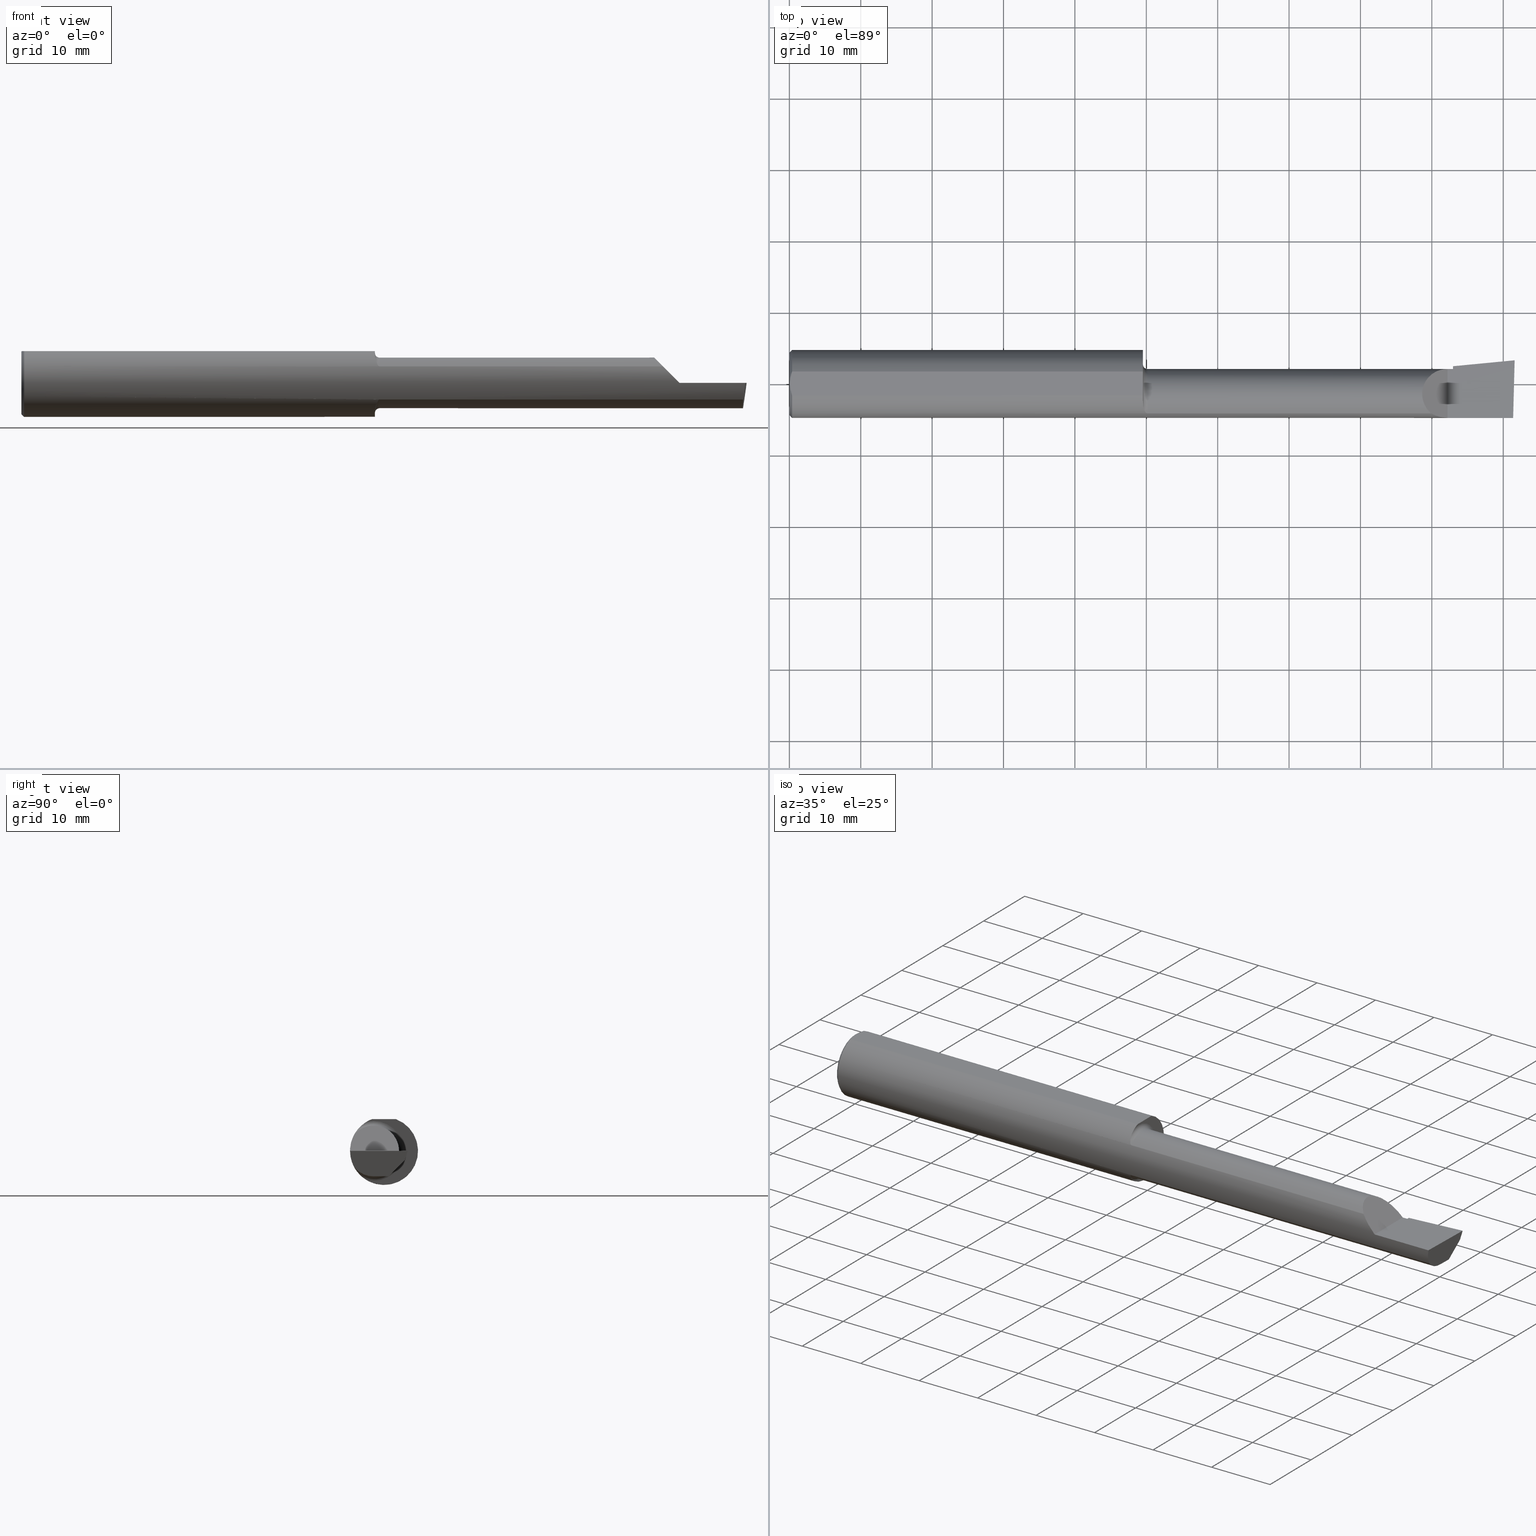
[diagram: canonical four-view strip — front | top / right | iso, engineering-drawing reading convention]
A machine part, canonical four-view strip (front | top / right | iso — engineering-drawing reading convention). The complete STEP part file that produces these views, byte-faithful:
ISO-10303-21;
HEADER;
FILE_DESCRIPTION (( 'STEP AP203' ),
    '1' );
FILE_NAME ('217498-B3202000.STEP',
    '2024-04-26T19:26:52',
    ( '' ),
    ( '' ),
    'SwSTEP 2.0',
    'SolidWorks 2022',
    '' );
FILE_SCHEMA (( 'CONFIG_CONTROL_DESIGN' ));
ENDSEC;

DATA;
#1 = PERSON_AND_ORGANIZATION ( #171, #561 ) ;
#2 = ORIENTED_EDGE ( 'NONE', *, *, #525, .T. ) ;
#3 = PLANE ( 'NONE',  #602 ) ;
#4 = AXIS2_PLACEMENT_3D ( 'NONE', #524, #586, #435 ) ;
#5 = EDGE_CURVE ( 'NONE', #362, #336, #89, .T. ) ;
#6 = CC_DESIGN_APPROVAL ( #404, ( #19 ) ) ;
#7 = ORIENTED_EDGE ( 'NONE', *, *, #544, .F. ) ;
#8 = CARTESIAN_POINT ( 'NONE',  ( 3.659999999999999698, -0.05739999999999999963, -0.1400500000000000633 ) ) ;
#9 = ORIENTED_EDGE ( 'NONE', *, *, #437, .F. ) ;
#10 = DIRECTION ( 'NONE',  ( -4.268512490100411279E-18, 1.000000000000000000, 0.000000000000000000 ) ) ;
#11 = CARTESIAN_POINT ( 'NONE',  ( 0.01499999999999997863, -0.06597272163553657975, 0.1753499999999999781 ) ) ;
#12 = DATE_TIME_ROLE ( 'classification_date' ) ;
#13 = ORIENTED_EDGE ( 'NONE', *, *, #202, .F. ) ;
#14 = LINE ( 'NONE', #566, #332 ) ;
#15 = ADVANCED_FACE ( 'NONE', ( #142 ), #548, .F. ) ;
#16 = CARTESIAN_POINT ( 'NONE',  ( 1.565719721143680372E-32, -0.1873499999999999610, 1.790477306702064235E-16 ) ) ;
#17 = ORIENTED_EDGE ( 'NONE', *, *, #295, .F. ) ;
#18 = CIRCLE ( 'NONE', #256, 0.1873499999999999888 ) ;
#19 = PRODUCT_DEFINITION_FORMATION_WITH_SPECIFIED_SOURCE ( 'ANY', '', #254, .NOT_KNOWN. ) ;
#20 = CARTESIAN_POINT ( 'NONE',  ( 3.654666039249973686, 0.01321247140458286194, -0.1209457786867198376 ) ) ;
#21 = VERTEX_POINT ( 'NONE', #235 ) ;
#22 = CARTESIAN_POINT ( 'NONE',  ( 0.01499999999999999424, 0.000000000000000000, 0.000000000000000000 ) ) ;
#23 = EDGE_CURVE ( 'NONE', #450, #371, #580, .T. ) ;
#24 = ORIENTED_EDGE ( 'NONE', *, *, #160, .T. ) ;
#25 = CARTESIAN_POINT ( 'NONE',  ( 1.967975941902152970, -0.1612443294219081946, -0.09540922431498190248 ) ) ;
#26 = CARTESIAN_POINT ( 'NONE',  ( 0.008227791779583789808, -0.04447712204611815878, 0.1753499999999999781 ) ) ;
#27 = B_SPLINE_CURVE_WITH_KNOTS ( 'NONE', 3,
 ( #98, #536, #37, #139, #340, #94, #381, #473, #633, #250, #293, #29, #148, #576 ),
 .UNSPECIFIED., .F., .F.,
 ( 4, 2, 2, 2, 2, 2, 4 ),
 ( 0.0002471551878304244871, 0.0008987327522055639636, 0.001550310316580703549, 0.002201887880955843025, 0.002527676663143411679, 0.002690571054237196440, 0.002853465445330980767 ),
 .UNSPECIFIED. ) ;
#28 = EDGE_CURVE ( 'NONE', #187, #599, #228, .T. ) ;
#29 = CARTESIAN_POINT ( 'NONE',  ( 1.970903862568969656, -0.1628809688430622182, 0.09258733509388469840 ) ) ;
#30 = AXIS2_PLACEMENT_3D ( 'NONE', #133, #126, #273 ) ;
#31 = CARTESIAN_POINT ( 'NONE',  ( 0.01499999999999999424, 0.000000000000000000, -0.1873499999999999888 ) ) ;
#32 = CARTESIAN_POINT ( 'NONE',  ( 3.656639924654160101, 0.06539171466162853330, -0.06735725908305577325 ) ) ;
#33 = LINE ( 'NONE', #88, #278 ) ;
#34 = DIRECTION ( 'NONE',  ( -1.000000000000000000, -4.268512490100411279E-18, -0.000000000000000000 ) ) ;
#35 = CARTESIAN_POINT ( 'NONE',  ( 3.981080296960509024, -0.1635956445993029806, -0.09130436773856190347 ) ) ;
#36 = EDGE_CURVE ( 'NONE', #453, #77, #274, .T. ) ;
#37 = CARTESIAN_POINT ( 'NONE',  ( 1.950383728133729955, -0.1114837668894153588, 0.1508119329971095157 ) ) ;
#38 = CARTESIAN_POINT ( 'NONE',  ( 3.984117089522338340, -0.1792580844883770730, -0.06324101202936152633 ) ) ;
#39 = APPLICATION_CONTEXT ( 'configuration controlled 3d designs of mechanical parts and assemblies' ) ;
#40 = AXIS2_PLACEMENT_3D ( 'NONE', #117, #167, #50 ) ;
#41 = ORIENTED_EDGE ( 'NONE', *, *, #538, .F. ) ;
#42 = CARTESIAN_POINT ( 'NONE',  ( 1.950000000000000178, -0.05740000000000000657, 0.000000000000000000 ) ) ;
#43 = CARTESIAN_POINT ( 'NONE',  ( 3.629999999999999893, 0.08264999999999990410, -1.383850883036508279E-16 ) ) ;
#44 = ADVANCED_FACE ( 'NONE', ( #567 ), #232, .T. ) ;
#45 = PERSON_AND_ORGANIZATION_ROLE ( 'classification_officer' ) ;
#46 = PLANE ( 'NONE',  #40 ) ;
#47 = PRODUCT_DEFINITION_SHAPE ( 'NONE', 'NONE',  #597 ) ;
#48 = CARTESIAN_POINT ( 'NONE',  ( 3.654666039249973686, 0.01321247140458286194, -0.1209457786867198376 ) ) ;
#49 = VERTEX_POINT ( 'NONE', #414 ) ;
#50 = DIRECTION ( 'NONE',  ( -0.7071067811865507924, 0.000000000000000000, 0.7071067811865443531 ) ) ;
#51 = AXIS2_PLACEMENT_3D ( 'NONE', #220, #615, #408 ) ;
#52 =( CONVERSION_BASED_UNIT ( 'INCH', #594 ) LENGTH_UNIT ( ) NAMED_UNIT ( #532 ) );
#53 = EDGE_LOOP ( 'NONE', ( #57, #158 ) ) ;
#54 = CARTESIAN_POINT ( 'NONE',  ( 3.999999999999979572, 0.1306500000000239969, 8.433726977940392991E-14 ) ) ;
#55 = EDGE_CURVE ( 'NONE', #181, #264, #417, .T. ) ;
#56 = APPROVAL_ROLE ( '' ) ;
#57 = ORIENTED_EDGE ( 'NONE', *, *, #489, .T. ) ;
#58 = LINE ( 'NONE', #263, #237 ) ;
#59 =( BOUNDED_CURVE ( )  B_SPLINE_CURVE ( 3, ( #35, #391, #243, #591 ),
 .UNSPECIFIED., .F., .F. ) 
 B_SPLINE_CURVE_WITH_KNOTS ( ( 4, 4 ),
 ( 5.632580117768156036, 6.493234751459283416 ),
 .UNSPECIFIED. ) 
 CURVE ( )  GEOMETRIC_REPRESENTATION_ITEM ( )  RATIONAL_B_SPLINE_CURVE ( ( 1.000000000000000000, 0.9392195014330944058, 0.9392195014330944058, 1.000000000000000000 ) ) 
 REPRESENTATION_ITEM ( '' )  );
#60 = CARTESIAN_POINT ( 'NONE',  ( 3.650743536083990382, 0.05394922433140207640, -0.08888335082963770561 ) ) ;
#61 = ORIENTED_EDGE ( 'NONE', *, *, #465, .T. ) ;
#62 = DIRECTION ( 'NONE',  ( 0.000000000000000000, 1.000000000000000000, 0.000000000000000000 ) ) ;
#63 =( BOUNDED_CURVE ( )  B_SPLINE_CURVE ( 3, ( #99, #38, #632, #203 ),
 .UNSPECIFIED., .F., .T. ) 
 B_SPLINE_CURVE_WITH_KNOTS ( ( 4, 4 ),
 ( 0.8516985021657640376, 1.360746882515199152 ),
 .UNSPECIFIED. ) 
 CURVE ( )  GEOMETRIC_REPRESENTATION_ITEM ( )  RATIONAL_B_SPLINE_CURVE ( ( 1.000000000000000000, 0.9785221379938656705, 0.9785221379938656705, 1.000000000000000000 ) ) 
 REPRESENTATION_ITEM ( '' )  );
#64 = VECTOR ( 'NONE', #253, 39.37007874015748143 ) ;
#65 = CALENDAR_DATE ( 2024, 26, 4 ) ;
#66 = VECTOR ( 'NONE', #585, 39.37007874015748854 ) ;
#67 = ORIENTED_EDGE ( 'NONE', *, *, #535, .F. ) ;
#68 = DIRECTION ( 'NONE',  ( 0.000000000000000000, 1.000000000000000000, -1.438723400918613551E-16 ) ) ;
#69 = DIRECTION ( 'NONE',  ( 0.000000000000000000, 0.000000000000000000, 1.000000000000000000 ) ) ;
#70 = ORIENTED_EDGE ( 'NONE', *, *, #202, .T. ) ;
#71 = CARTESIAN_POINT ( 'NONE',  ( 4.000000000000000000, -0.05739999999999999963, -0.1400500000000000633 ) ) ;
#72 = APPROVAL ( #447, 'UNSPECIFIED' ) ;
#73 = EDGE_LOOP ( 'NONE', ( #305, #123, #552, #67 ) ) ;
#74 = UNCERTAINTY_MEASURE_WITH_UNIT (LENGTH_MEASURE( 1.000000000000000082E-05 ), #52, 'distance_accuracy_value', 'NONE');
#75 = CARTESIAN_POINT ( 'NONE',  ( 3.658254417281640247, 0.01401537333401175513, -0.1204743278970655529 ) ) ;
#76 = CARTESIAN_POINT ( 'NONE',  ( 3.659999999999999698, 0.1149890494305081945, -0.01656765604781319789 ) ) ;
#77 = VERTEX_POINT ( 'NONE', #456 ) ;
#78 = AXIS2_PLACEMENT_3D ( 'NONE', #553, #492, #156 ) ;
#79 = CC_DESIGN_APPROVAL ( #298, ( #385 ) ) ;
#80 = CARTESIAN_POINT ( 'NONE',  ( 3.421229036482944075, -0.06260079402492399470, 0.2087709635170538480 ) ) ;
#81 = CARTESIAN_POINT ( 'NONE',  ( 0.003000000000000218638, 2.334609556160449697E-17, 0.1753499999999999781 ) ) ;
#82 = EDGE_CURVE ( 'NONE', #187, #125, #215, .T. ) ;
#83 = ORIENTED_EDGE ( 'NONE', *, *, #28, .F. ) ;
#84 = DIRECTION ( 'NONE',  ( 0.06658005426110566449, -0.6914603011188223958, -0.7193398003386547446 ) ) ;
#85 = DIRECTION ( 'NONE',  ( 1.000000000000000000, 0.000000000000000000, 0.000000000000000000 ) ) ;
#86 = VERTEX_POINT ( 'NONE', #180 ) ;
#87 = CARTESIAN_POINT ( 'NONE',  ( 2.817500000000000338, -0.1635956445993029806, -0.09130436773856190347 ) ) ;
#88 = CARTESIAN_POINT ( 'NONE',  ( 0.000000000000000000, -0.06597272163553657975, 0.1753499999999999781 ) ) ;
#89 = LINE ( 'NONE', #630, #515 ) ;
#90 = CARTESIAN_POINT ( 'NONE',  ( 1.956145841430604770, -0.1426194794824340584, -0.1217813759115466132 ) ) ;
#91 = AXIS2_PLACEMENT_3D ( 'NONE', #638, #429, #634 ) ;
#92 = VECTOR ( 'NONE', #484, 39.37007874015748854 ) ;
#93 = CARTESIAN_POINT ( 'NONE',  ( 4.000000000000000000, -0.05739999999999999963, -0.1400500000000000633 ) ) ;
#94 = CARTESIAN_POINT ( 'NONE',  ( 1.956142321956750418, -0.1426151417460931881, 0.1217894822571231050 ) ) ;
#95 = ADVANCED_FACE ( 'NONE', ( #464 ), #183, .T. ) ;
#96 = LINE ( 'NONE', #242, #92 ) ;
#97 = CARTESIAN_POINT ( 'NONE',  ( 3.629999999999999893, -0.1873499999999999888, -1.383850883036508279E-16 ) ) ;
#98 = CARTESIAN_POINT ( 'NONE',  ( 1.950000000000000178, -0.09715400696864148755, 0.1601908905959922580 ) ) ;
#99 = CARTESIAN_POINT ( 'NONE',  ( 3.981080296960509024, -0.1635956445993029806, -0.09130436773856190347 ) ) ;
#100 = VECTOR ( 'NONE', #531, 39.37007874015748143 ) ;
#101 = ADVANCED_FACE ( 'NONE', ( #373 ), #627, .T. ) ;
#102 = MANIFOLD_SOLID_BREP ( 'Extrude7', #111 ) ;
#103 = PERSON_AND_ORGANIZATION ( #171, #561 ) ;
#104 = LINE ( 'NONE', #648, #592 ) ;
#105 = MECHANICAL_CONTEXT ( 'NONE', #39, 'mechanical' ) ;
#106 = EDGE_LOOP ( 'NONE', ( #166, #70, #221, #114, #606, #319 ) ) ;
#107 = DIRECTION ( 'NONE',  ( -4.268512490100411279E-18, 1.000000000000000000, 3.732688574539098315E-34 ) ) ;
#108 = APPROVAL_DATE_TIME ( #545, #72 ) ;
#109 = ORIENTED_EDGE ( 'NONE', *, *, #284, .T. ) ;
#110 = FACE_OUTER_BOUND ( 'NONE', #427, .T. ) ;
#111 = CLOSED_SHELL ( 'NONE', ( #244, #419, #95, #433, #363, #335, #426, #347, #15, #397, #101, #44, #454, #516, #327, #141, #316 ) ) ;
#112 = LOCAL_TIME ( 12, 26, 52.00000000000000000, #436 ) ;
#113 = APPROVAL_ROLE ( '' ) ;
#114 = ORIENTED_EDGE ( 'NONE', *, *, #376, .F. ) ;
#115 = DIRECTION ( 'NONE',  ( -1.000000000000000000, 0.000000000000000000, 8.744705756855574331E-17 ) ) ;
#116 = EDGE_LOOP ( 'NONE', ( #503, #162, #7, #61, #558, #472, #507, #314, #308, #573, #444, #17 ) ) ;
#117 = CARTESIAN_POINT ( 'NONE',  ( 3.629999999999999893, -0.2500000000000000555, -1.383850883036508279E-16 ) ) ;
#118 = APPROVAL_DATE_TIME ( #168, #298 ) ;
#119 = VERTEX_POINT ( 'NONE', #247 ) ;
#120 = DIRECTION ( 'NONE',  ( -1.000000000000000000, -4.268512490100411279E-18, -0.000000000000000000 ) ) ;
#121 = EDGE_CURVE ( 'NONE', #505, #371, #577, .T. ) ;
#122 = CIRCLE ( 'NONE', #517, 0.1723499999999996424 ) ;
#123 = ORIENTED_EDGE ( 'NONE', *, *, #129, .F. ) ;
#124 = DIRECTION ( 'NONE',  ( -1.000000000000000000, -0.000000000000000000, -0.000000000000000000 ) ) ;
#125 = VERTEX_POINT ( 'NONE', #31 ) ;
#126 = DIRECTION ( 'NONE',  ( -1.000000000000000000, -4.268512490100411279E-18, 0.000000000000000000 ) ) ;
#127 = VERTEX_POINT ( 'NONE', #43 ) ;
#128 = CARTESIAN_POINT ( 'NONE',  ( 3.659999999999999698, 0.01441505128072236540, -0.1202356058309986681 ) ) ;
#129 = EDGE_CURVE ( 'NONE', #230, #181, #411, .T. ) ;
#130 = DIRECTION ( 'NONE',  ( -1.000000000000000000, -4.268512490100411279E-18, -0.000000000000000000 ) ) ;
#131 = ORIENTED_EDGE ( 'NONE', *, *, #121, .F. ) ;
#132 = AXIS2_PLACEMENT_3D ( 'NONE', #345, #239, #485 ) ;
#133 = CARTESIAN_POINT ( 'NONE',  ( 3.659999999999999698, 0.09791172361283663472, 0.000000000000000000 ) ) ;
#134 = EDGE_CURVE ( 'NONE', #339, #450, #33, .T. ) ;
#135 = DIRECTION ( 'NONE',  ( -1.000000000000000000, -4.268512490100411279E-18, -0.000000000000000000 ) ) ;
#136 = ORIENTED_EDGE ( 'NONE', *, *, #267, .T. ) ;
#137 =( BOUNDED_CURVE ( )  B_SPLINE_CURVE ( 3, ( #514, #80, #282, #175 ),
 .UNSPECIFIED., .F., .T. ) 
 B_SPLINE_CURVE_WITH_KNOTS ( ( 4, 4 ),
 ( 5.422530673488460629, 7.853981633974483678 ),
 .UNSPECIFIED. ) 
 CURVE ( )  GEOMETRIC_REPRESENTATION_ITEM ( )  RATIONAL_B_SPLINE_CURVE ( ( 1.000000000000000000, 0.5651045289226865886, 0.5651045289226865886, 1.000000000000000000 ) ) 
 REPRESENTATION_ITEM ( '' )  );
#138 = CARTESIAN_POINT ( 'NONE',  ( 1.951903396790308109, -0.1248165254919064160, -0.1399798634953944299 ) ) ;
#139 = CARTESIAN_POINT ( 'NONE',  ( 1.951891754936545098, -0.1247344934163569508, 0.1400506178720500317 ) ) ;
#140 = DIRECTION ( 'NONE',  ( 0.000000000000000000, 0.000000000000000000, 1.000000000000000000 ) ) ;
#141 = ADVANCED_FACE ( 'NONE', ( #241 ), #425, .T. ) ;
#142 = FACE_OUTER_BOUND ( 'NONE', #333, .T. ) ;
#143 = DIRECTION ( 'NONE',  ( 1.000000000000000000, 4.268512490100411279E-18, 0.000000000000000000 ) ) ;
#144 = VECTOR ( 'NONE', #468, 39.37007874015748143 ) ;
#145 = DIRECTION ( 'NONE',  ( -1.000000000000000000, -4.268512490100411279E-18, -0.000000000000000000 ) ) ;
#146 = DIRECTION ( 'NONE',  ( 0.000000000000000000, -0.2936076258024062913, -0.9559260233253795702 ) ) ;
#147 = CARTESIAN_POINT ( 'NONE',  ( 3.977889026591898691, -0.05682100378451883371, -0.1400500000000000633 ) ) ;
#148 = CARTESIAN_POINT ( 'NONE',  ( 1.972800914500665304, -0.1635956445997551467, 0.09130436773775216230 ) ) ;
#149 = CARTESIAN_POINT ( 'NONE',  ( 0.000000000000000000, 0.000000000000000000, 0.000000000000000000 ) ) ;
#150 = ORIENTED_EDGE ( 'NONE', *, *, #121, .T. ) ;
#151 = PERSON_AND_ORGANIZATION_ROLE ( 'design_supplier' ) ;
#152 = CARTESIAN_POINT ( 'NONE',  ( 0.01499999999999999424, 0.06597272163553663527, 0.1753499999999999781 ) ) ;
#153 = AXIS2_PLACEMENT_3D ( 'NONE', #22, #124, #613 ) ;
#154 = VECTOR ( 'NONE', #143, 39.37007874015748143 ) ;
#155 = ORIENTED_EDGE ( 'NONE', *, *, #36, .T. ) ;
#156 = DIRECTION ( 'NONE',  ( 0.1219104985251952683, 0.000000000000000000, 0.9925410975618785825 ) ) ;
#157 = PERSON_AND_ORGANIZATION ( #171, #561 ) ;
#158 = ORIENTED_EDGE ( 'NONE', *, *, #616, .F. ) ;
#159 = DIRECTION ( 'NONE',  ( -1.000000000000000000, 5.691349986800549142E-18, -0.000000000000000000 ) ) ;
#160 = EDGE_CURVE ( 'NONE', #218, #453, #63, .T. ) ;
#161 = CARTESIAN_POINT ( 'NONE',  ( 3.649559965233994507, 0.06624107758111237587, -0.06577907292278784013 ) ) ;
#162 = ORIENTED_EDGE ( 'NONE', *, *, #588, .T. ) ;
#163 = PLANE ( 'NONE',  #486 ) ;
#164 = VECTOR ( 'NONE', #443, 39.37007874015748143 ) ;
#165 =( NAMED_UNIT ( * ) SI_UNIT ( $, .STERADIAN. ) SOLID_ANGLE_UNIT ( ) );
#166 = ORIENTED_EDGE ( 'NONE', *, *, #36, .F. ) ;
#167 = DIRECTION ( 'NONE',  ( -0.7071067811865443531, 0.000000000000000000, -0.7071067811865507924 ) ) ;
#168 = DATE_AND_TIME ( #65, #361 ) ;
#169 = EDGE_LOOP ( 'NONE', ( #346, #236, #412, #647 ) ) ;
#170 = CARTESIAN_POINT ( 'NONE',  ( 1.963743174082349885, -0.1572750258711010096, -0.1018777902325210261 ) ) ;
#171 = PERSON ( 'UNSPECIFIED', 'UNSPECIFIED', 'UNSPECIFIED', ('UNSPECIFIED'), ('UNSPECIFIED'), ('UNSPECIFIED') ) ;
#172 = EDGE_CURVE ( 'NONE', #77, #418, #248, .T. ) ;
#173 = APPROVAL_STATUS ( 'not_yet_approved' ) ;
#174 = VERTEX_POINT ( 'NONE', #431 ) ;
#175 = CARTESIAN_POINT ( 'NONE',  ( 3.629999999999999893, 0.08264999999999990410, -1.383850883036508279E-16 ) ) ;
#176 = AXIS2_PLACEMENT_3D ( 'NONE', #563, #120, #323 ) ;
#177 = APPROVAL_PERSON_ORGANIZATION ( #157, #72, #56 ) ;
#178 = ORIENTED_EDGE ( 'NONE', *, *, #465, .F. ) ;
#179 = CARTESIAN_POINT ( 'NONE',  ( 0.000000000000000000, 0.000000000000000000, 0.000000000000000000 ) ) ;
#180 = CARTESIAN_POINT ( 'NONE',  ( 3.993439983562941720, 0.1146611065212079367, -0.05000000000000003053 ) ) ;
#181 = VERTEX_POINT ( 'NONE', #294 ) ;
#182 = CARTESIAN_POINT ( 'NONE',  ( 4.000000000000000000, 0.2373500000000000332, 0.1753499999999999504 ) ) ;
#183 = CYLINDRICAL_SURFACE ( 'NONE', #559, 0.1873499999999999888 ) ;
#184 = ORIENTED_EDGE ( 'NONE', *, *, #28, .T. ) ;
#185 = DIRECTION ( 'NONE',  ( -0.1240019227988278516, -0.3022330132596593444, -0.9451342385281470415 ) ) ;
#186 = APPLICATION_CONTEXT ( 'configuration controlled 3d designs of mechanical parts and assemblies' ) ;
#187 = VERTEX_POINT ( 'NONE', #152 ) ;
#188 = DIRECTION ( 'NONE',  ( -1.000000000000000000, -4.268512490100411279E-18, -0.000000000000000000 ) ) ;
#189 = CARTESIAN_POINT ( 'NONE',  ( 3.659999999999999698, 0.09791172361283663472, 0.000000000000000000 ) ) ;
#190 = DIRECTION ( 'NONE',  ( 0.09165774897393338949, -0.9519021185660613282, 0.2923717047227305521 ) ) ;
#191 = CARTESIAN_POINT ( 'NONE',  ( 3.990039159128060398, -0.2497391662021650749, -1.698694533788567331E-16 ) ) ;
#192 = CC_DESIGN_DATE_AND_TIME_ASSIGNMENT ( #393, #12, ( #385 ) ) ;
#193 = DIRECTION ( 'NONE',  ( 0.9953961983671787417, 0.09584575252022461966, -8.704446866213619353E-17 ) ) ;
#194 = PLANE ( 'NONE',  #258 ) ;
#195 = CARTESIAN_POINT ( 'NONE',  ( 1.953041727949557993, -0.1311116946065054856, -0.1340922927843368473 ) ) ;
#196 = AXIS2_PLACEMENT_3D ( 'NONE', #189, #380, #292 ) ;
#197 = APPROVAL_PERSON_ORGANIZATION ( #225, #298, #342 ) ;
#198 = CARTESIAN_POINT ( 'NONE',  ( 3.659999999999999698, 0.08265000000000023717, 1.790477306702066946E-16 ) ) ;
#199 = CARTESIAN_POINT ( 'NONE',  ( 1.950000000000000178, -0.09715400696864148755, -0.1601908905959922580 ) ) ;
#200 = CARTESIAN_POINT ( 'NONE',  ( 0.004115035183746292881, 0.02255629470626744487, 0.1753499999999999781 ) ) ;
#201 = CARTESIAN_POINT ( 'NONE',  ( 3.652489847161463743, 0.03581309036639282462, -0.1077507289917615518 ) ) ;
#202 = EDGE_CURVE ( 'NONE', #453, #336, #251, .T. ) ;
#203 = CARTESIAN_POINT ( 'NONE',  ( 3.991672876940992154, -0.1873499999999999888, -1.700101953615524951E-16 ) ) ;
#204 = CC_DESIGN_PERSON_AND_ORGANIZATION_ASSIGNMENT ( #103, #45, ( #385 ) ) ;
#205 = CALENDAR_DATE ( 2024, 26, 4 ) ;
#206 = CARTESIAN_POINT ( 'NONE',  ( 3.659999999999999698, 0.09791172361284167236, 1.790479042428870021E-16 ) ) ;
#207 = AXIS2_PLACEMENT_3D ( 'NONE', #179, #618, #570 ) ;
#208 = ORIENTED_EDGE ( 'NONE', *, *, #23, .F. ) ;
#209 = EDGE_CURVE ( 'NONE', #218, #466, #59, .T. ) ;
#210 = PERSON_AND_ORGANIZATION ( #171, #561 ) ;
#211 = EDGE_LOOP ( 'NONE', ( #621, #24, #155, #378, #178, #500, #624, #272, #477, #617, #184, #546, #364 ) ) ;
#212 = LINE ( 'NONE', #8, #64 ) ;
#213 = ORIENTED_EDGE ( 'NONE', *, *, #338, .F. ) ;
#214 = LINE ( 'NONE', #403, #310 ) ;
#215 = CIRCLE ( 'NONE', #51, 0.1873499999999999888 ) ;
#216 = CIRCLE ( 'NONE', #572, 0.1400499999999998413 ) ;
#217 = ORIENTED_EDGE ( 'NONE', *, *, #575, .T. ) ;
#218 = VERTEX_POINT ( 'NONE', #302 ) ;
#219 = DIRECTION ( 'NONE',  ( 0.000000000000000000, -1.438723400918613551E-16, -1.000000000000000000 ) ) ;
#220 = CARTESIAN_POINT ( 'NONE',  ( 0.01499999999999999424, 0.000000000000000000, 0.000000000000000000 ) ) ;
#221 = ORIENTED_EDGE ( 'NONE', *, *, #5, .F. ) ;
#222 = LINE ( 'NONE', #270, #224 ) ;
#223 = DIRECTION ( 'NONE',  ( 4.268512490100412049E-18, -1.000000000000000000, 0.000000000000000000 ) ) ;
#224 = VECTOR ( 'NONE', #185, 39.37007874015747433 ) ;
#225 = PERSON_AND_ORGANIZATION ( #171, #561 ) ;
#226 = ORIENTED_EDGE ( 'NONE', *, *, #5, .T. ) ;
#227 = DIRECTION ( 'NONE',  ( 1.000000000000000000, 4.268512490100411279E-18, 0.000000000000000000 ) ) ;
#228 = LINE ( 'NONE', #521, #331 ) ;
#229 = EDGE_CURVE ( 'NONE', #339, #405, #611, .T. ) ;
#230 = VERTEX_POINT ( 'NONE', #198 ) ;
#231 = CARTESIAN_POINT ( 'NONE',  ( 3.538695632261437130, -0.1635956445993027863, 0.09130436773856213939 ) ) ;
#232 = CYLINDRICAL_SURFACE ( 'NONE', #539, 0.1400500000000000078 ) ;
#233 = VERTEX_POINT ( 'NONE', #350 ) ;
#234 = CARTESIAN_POINT ( 'NONE',  ( 1.950000000000000178, -0.09715400696864148755, 0.1601908905959922580 ) ) ;
#235 = CARTESIAN_POINT ( 'NONE',  ( 3.649559965233994507, 0.06624107758111237587, -0.06577907292278784013 ) ) ;
#236 = ORIENTED_EDGE ( 'NONE', *, *, #368, .T. ) ;
#237 = VECTOR ( 'NONE', #596, 39.37007874015748143 ) ;
#238 = CARTESIAN_POINT ( 'NONE',  ( 1.950000000000000178, 0.06597272163553663527, 0.1753499999999999781 ) ) ;
#239 = DIRECTION ( 'NONE',  ( 0.9953961983671800740, 0.09584575252021095004, 2.159006183157990783E-14 ) ) ;
#240 = CARTESIAN_POINT ( 'NONE',  ( 3.659999999999999698, 0.06495571228477983738, -0.06814016562413256761 ) ) ;
#241 = FACE_OUTER_BOUND ( 'NONE', #53, .T. ) ;
#242 = CARTESIAN_POINT ( 'NONE',  ( 3.991859106488688358, 0.02714641170210411319, -0.1400500000000000633 ) ) ;
#243 = CARTESIAN_POINT ( 'NONE',  ( 3.976787929832031221, -0.09887019258091177265, -0.1400500000000001188 ) ) ;
#244 = ADVANCED_FACE ( 'NONE', ( #387 ), #475, .T. ) ;
#245 = CARTESIAN_POINT ( 'NONE',  ( 3.653159806206771165, 0.06582018291673084887, -0.06657020401570125367 ) ) ;
#246 = VECTOR ( 'NONE', #159, 39.37007874015748143 ) ;
#247 = CARTESIAN_POINT ( 'NONE',  ( 3.980058035321255794, 0.02601009779168078281, -0.1400500000000000911 ) ) ;
#248 =( BOUNDED_CURVE ( )  B_SPLINE_CURVE ( 3, ( #97, #423, #384, #581 ),
 .UNSPECIFIED., .F., .T. ) 
 B_SPLINE_CURVE_WITH_KNOTS ( ( 4, 4 ),
 ( 4.712388980384689674, 5.221437360734126898 ),
 .UNSPECIFIED. ) 
 CURVE ( )  GEOMETRIC_REPRESENTATION_ITEM ( )  RATIONAL_B_SPLINE_CURVE ( ( 1.000000000000000000, 0.9785221379938655595, 0.9785221379938655595, 1.000000000000000000 ) ) 
 REPRESENTATION_ITEM ( '' )  );
#249 = EDGE_CURVE ( 'NONE', #119, #466, #641, .T. ) ;
#250 = CARTESIAN_POINT ( 'NONE',  ( 1.966855994529493667, -0.1603175578889969033, 0.09696363432848439934 ) ) ;
#251 = LINE ( 'NONE', #191, #451 ) ;
#252 =( NAMED_UNIT ( * ) PLANE_ANGLE_UNIT ( ) SI_UNIT ( $, .RADIAN. ) );
#253 = DIRECTION ( 'NONE',  ( 0.000000000000000000, 1.000000000000000000, 8.537024980200821325E-17 ) ) ;
#254 = PRODUCT ( '217498-B3202000', '217498-B3202000', '', ( #105 ) ) ;
#255 = ORIENTED_EDGE ( 'NONE', *, *, #489, .F. ) ;
#256 = AXIS2_PLACEMENT_3D ( 'NONE', #320, #504, #62 ) ;
#257 = LINE ( 'NONE', #547, #164 ) ;
#258 = AXIS2_PLACEMENT_3D ( 'NONE', #386, #190, #146 ) ;
#259 = PRODUCT_RELATED_PRODUCT_CATEGORY ( 'detail', '', ( #254 ) ) ;
#260 = COORDINATED_UNIVERSAL_TIME_OFFSET ( 8, 0, .BEHIND. ) ;
#261 = EDGE_LOOP ( 'NONE', ( #131, #415, #217, #610, #329 ) ) ;
#262 = EDGE_LOOP ( 'NONE', ( #394, #628, #600, #491, #457, #255, #469, #564 ) ) ;
#263 = CARTESIAN_POINT ( 'NONE',  ( 1.950000000000000178, 0.2373500000000000332, 0.1753499999999999504 ) ) ;
#264 = VERTEX_POINT ( 'NONE', #534 ) ;
#265 = FACE_OUTER_BOUND ( 'NONE', #262, .T. ) ;
#266 = VECTOR ( 'NONE', #84, 39.37007874015748143 ) ;
#267 = EDGE_CURVE ( 'NONE', #371, #187, #578, .T. ) ;
#268 = SHAPE_DEFINITION_REPRESENTATION ( #47, #309 ) ;
#269 = ORIENTED_EDGE ( 'NONE', *, *, #368, .F. ) ;
#270 = CARTESIAN_POINT ( 'NONE',  ( 3.993291301099662238, 0.1142987190042920459, -0.05113324764279859880 ) ) ;
#271 = CARTESIAN_POINT ( 'NONE',  ( 0.000000000000000000, -0.05740000000000001351, 0.000000000000000000 ) ) ;
#272 = ORIENTED_EDGE ( 'NONE', *, *, #134, .T. ) ;
#273 = DIRECTION ( 'NONE',  ( 4.268512490100411279E-18, -1.000000000000000000, 0.000000000000000000 ) ) ;
#274 = LINE ( 'NONE', #16, #144 ) ;
#275 = ORIENTED_EDGE ( 'NONE', *, *, #172, .F. ) ;
#276 = FACE_OUTER_BOUND ( 'NONE', #325, .T. ) ;
#277 = B_SPLINE_CURVE_WITH_KNOTS ( 'NONE', 3,
 ( #375, #508, #470, #25, #420, #170, #296, #424, #90, #195, #138, #526, #478, #199 ),
 .UNSPECIFIED., .F., .F.,
 ( 4, 2, 2, 2, 2, 2, 4 ),
 ( 1.968340875534775316E-07, 0.0001667114270246280842, 0.0003332260199617026984, 0.0006662552058358508968, 0.001332313577584142523, 0.001998371949332434366, 0.002664430321080726426 ),
 .UNSPECIFIED. ) ;
#278 = VECTOR ( 'NONE', #341, 39.37007874015748143 ) ;
#279 = ORIENTED_EDGE ( 'NONE', *, *, #304, .T. ) ;
#280 = LINE ( 'NONE', #467, #266 ) ;
#281 = EDGE_LOOP ( 'NONE', ( #109, #2 ) ) ;
#282 = CARTESIAN_POINT ( 'NONE',  ( 3.475085956200449022, 0.08265000000000018165, 0.1549140437995492336 ) ) ;
#283 = DIRECTION ( 'NONE',  ( -2.972230601656783191E-18, 0.6963153109074927682, 0.7177360153954946975 ) ) ;
#284 = EDGE_CURVE ( 'NONE', #562, #505, #439, .T. ) ;
#285 = ORIENTED_EDGE ( 'NONE', *, *, #407, .F. ) ;
#286 = CARTESIAN_POINT ( 'NONE',  ( 1.975000000000000089, -0.05740000000000000657, 0.000000000000000000 ) ) ;
#287 = DIRECTION ( 'NONE',  ( -1.000000000000000000, -0.000000000000000000, -0.000000000000000000 ) ) ;
#288 = AXIS2_PLACEMENT_3D ( 'NONE', #182, #219, #68 ) ;
#289 = VECTOR ( 'NONE', #348, 39.37007874015748143 ) ;
#290 = LOCAL_TIME ( 12, 26, 52.00000000000000000, #490 ) ;
#291 = CARTESIAN_POINT ( 'NONE',  ( 3.649559965233994507, 0.06624107758111237587, -0.06577907292278784013 ) ) ;
#292 = DIRECTION ( 'NONE',  ( 4.268512490100411279E-18, -1.000000000000000000, 0.000000000000000000 ) ) ;
#293 = CARTESIAN_POINT ( 'NONE',  ( 1.968001859868116821, -0.1612625562479371999, 0.09537826053888165401 ) ) ;
#294 = CARTESIAN_POINT ( 'NONE',  ( 3.659999999999999698, 0.06495571228477983738, -0.06814016562413256761 ) ) ;
#295 = EDGE_CURVE ( 'NONE', #466, #442, #527, .T. ) ;
#296 = CARTESIAN_POINT ( 'NONE',  ( 1.962184598714912909, -0.1550322129197698462, -0.1052705638704080349 ) ) ;
#297 = CARTESIAN_POINT ( 'NONE',  ( 0.003000000000000169632, 0.01127363201155560934, 0.1753499999999999781 ) ) ;
#298 = APPROVAL ( #173, 'UNSPECIFIED' ) ;
#299 = CARTESIAN_POINT ( 'NONE',  ( 0.01499999999999999424, 0.000000000000000000, -0.1873499999999999888 ) ) ;
#300 = AXIS2_PLACEMENT_3D ( 'NONE', #607, #445, #353 ) ;
#301 = LOCAL_TIME ( 12, 26, 52.00000000000000000, #260 ) ;
#302 = CARTESIAN_POINT ( 'NONE',  ( 3.981080296960509024, -0.1635956445993029806, -0.09130436773856190347 ) ) ;
#303 = PLANE ( 'NONE',  #78 ) ;
#304 = EDGE_CURVE ( 'NONE', #77, #127, #257, .T. ) ;
#305 = ORIENTED_EDGE ( 'NONE', *, *, #55, .F. ) ;
#306 = CARTESIAN_POINT ( 'NONE',  ( 3.659999999999999698, -0.004807985797372722400, -0.1400500000000000633 ) ) ;
#307 = APPLICATION_PROTOCOL_DEFINITION ( 'international standard', 'config_control_design', 1994, #39 ) ;
#308 = ORIENTED_EDGE ( 'NONE', *, *, #616, .T. ) ;
#309 = ADVANCED_BREP_SHAPE_REPRESENTATION ( '217498-B3202000', ( #102, #593 ), #312 ) ;
#310 = VECTOR ( 'NONE', #107, 39.37007874015748143 ) ;
#311 = CARTESIAN_POINT ( 'NONE',  ( 3.648099498941298702, 0.08140859995291799267, -0.05000000000000002359 ) ) ;
#312 =( GEOMETRIC_REPRESENTATION_CONTEXT ( 3 ) GLOBAL_UNCERTAINTY_ASSIGNED_CONTEXT ( ( #74 ) ) GLOBAL_UNIT_ASSIGNED_CONTEXT ( ( #52, #252, #165 ) ) REPRESENTATION_CONTEXT ( 'NONE', 'WORKASPACE' ) );
#313 = COORDINATED_UNIVERSAL_TIME_OFFSET ( 8, 0, .BEHIND. ) ;
#314 = ORIENTED_EDGE ( 'NONE', *, *, #511, .F. ) ;
#315 = CARTESIAN_POINT ( 'NONE',  ( 3.987166985808005659, 0.07310455820032728258, -0.09221234738244886431 ) ) ;
#316 = ADVANCED_FACE ( 'NONE', ( #110 ), #303, .F. ) ;
#317 =( BOUNDED_CURVE ( )  B_SPLINE_CURVE ( 3, ( #161, #60, #201, #48 ),
 .UNSPECIFIED., .F., .F. ) 
 B_SPLINE_CURVE_WITH_KNOTS ( ( 4, 4 ),
 ( 0.4889314207010920788, 1.042347087928815030 ),
 .UNSPECIFIED. ) 
 CURVE ( )  GEOMETRIC_REPRESENTATION_ITEM ( )  RATIONAL_B_SPLINE_CURVE ( ( 1.000000000000000000, 0.9746400248777660202, 0.9746400248777660202, 1.000000000000000000 ) ) 
 REPRESENTATION_ITEM ( '' )  );
#318 = APPROVAL_STATUS ( 'not_yet_approved' ) ;
#319 = ORIENTED_EDGE ( 'NONE', *, *, #304, .F. ) ;
#320 = CARTESIAN_POINT ( 'NONE',  ( 1.950000000000000178, 0.000000000000000000, 0.000000000000000000 ) ) ;
#321 = EDGE_CURVE ( 'NONE', #86, #119, #541, .T. ) ;
#322 = CC_DESIGN_DATE_AND_TIME_ASSIGNMENT ( #398, #603, ( #597 ) ) ;
#323 = DIRECTION ( 'NONE',  ( 0.000000000000000000, -1.000000000000000000, 0.000000000000000000 ) ) ;
#324 = CIRCLE ( 'NONE', #176, 0.1400500000000002299 ) ;
#325 = EDGE_LOOP ( 'NONE', ( #406, #604, #644, #513 ) ) ;
#326 = ORIENTED_EDGE ( 'NONE', *, *, #249, .F. ) ;
#327 = ADVANCED_FACE ( 'NONE', ( #265 ), #3, .F. ) ;
#328 = CARTESIAN_POINT ( 'NONE',  ( 3.656476415630202759, 0.01361451005324046913, -0.1207110541441178408 ) ) ;
#329 = ORIENTED_EDGE ( 'NONE', *, *, #23, .T. ) ;
#330 = CARTESIAN_POINT ( 'NONE',  ( 0.003000000000000172667, -0.01126410975715121283, 0.1753500000000000059 ) ) ;
#331 = VECTOR ( 'NONE', #85, 39.37007874015748143 ) ;
#332 = VECTOR ( 'NONE', #622, 39.37007874015748143 ) ;
#333 = EDGE_LOOP ( 'NONE', ( #482, #509, #374, #608 ) ) ;
#334 = FACE_OUTER_BOUND ( 'NONE', #396, .T. ) ;
#335 = ADVANCED_FACE ( 'NONE', ( #497 ), #46, .F. ) ;
#336 = VERTEX_POINT ( 'NONE', #54 ) ;
#337 = LINE ( 'NONE', #87, #495 ) ;
#338 = EDGE_CURVE ( 'NONE', #442, #344, #212, .T. ) ;
#339 = VERTEX_POINT ( 'NONE', #543 ) ;
#340 = CARTESIAN_POINT ( 'NONE',  ( 1.953025912205683667, -0.1310442973014116219, 0.1341609063345041430 ) ) ;
#341 = DIRECTION ( 'NONE',  ( -1.000000000000000000, -0.000000000000000000, -0.000000000000000000 ) ) ;
#342 = APPROVAL_ROLE ( '' ) ;
#343 = DIRECTION ( 'NONE',  ( -1.000000000000000000, -0.000000000000000000, -0.000000000000000000 ) ) ;
#344 = VERTEX_POINT ( 'NONE', #306 ) ;
#345 = CARTESIAN_POINT ( 'NONE',  ( 3.652201917153907296, 0.03880335782617828216, -0.1900000000000001132 ) ) ;
#346 = ORIENTED_EDGE ( 'NONE', *, *, #392, .T. ) ;
#347 = ADVANCED_FACE ( 'NONE', ( #438 ), #571, .T. ) ;
#348 = DIRECTION ( 'NONE',  ( -0.02617694830779389997, -0.9996573249755593693, -8.535148296544462419E-17 ) ) ;
#349 = LINE ( 'NONE', #299, #476 ) ;
#350 = CARTESIAN_POINT ( 'NONE',  ( 1.975000000000000089, -0.1635956445993032582, -0.09130436773856132060 ) ) ;
#351 = CALENDAR_DATE ( 2024, 26, 4 ) ;
#352 = CIRCLE ( 'NONE', #153, 0.1873499999999999888 ) ;
#353 = DIRECTION ( 'NONE',  ( 0.000000000000000000, 0.000000000000000000, -1.000000000000000000 ) ) ;
#354 = ORIENTED_EDGE ( 'NONE', *, *, #535, .T. ) ;
#355 = CARTESIAN_POINT ( 'NONE',  ( 0.003000000000000218638, 2.334609556160449697E-17, 0.1753499999999999781 ) ) ;
#356 = CALENDAR_DATE ( 2024, 26, 4 ) ;
#357 = ORIENTED_EDGE ( 'NONE', *, *, #575, .F. ) ;
#358 = EDGE_CURVE ( 'NONE', #344, #49, #104, .T. ) ;
#359 = AXIS2_PLACEMENT_3D ( 'NONE', #149, #287, #140 ) ;
#360 = CARTESIAN_POINT ( 'NONE',  ( 4.000000000000000000, -0.2500000000000000555, -1.707404996040164512E-16 ) ) ;
#361 = LOCAL_TIME ( 12, 26, 52.00000000000000000, #529 ) ;
#362 = VERTEX_POINT ( 'NONE', #206 ) ;
#363 = ADVANCED_FACE ( 'NONE', ( #501 ), #163, .F. ) ;
#364 = ORIENTED_EDGE ( 'NONE', *, *, #498, .F. ) ;
#365 = CARTESIAN_POINT ( 'NONE',  ( 1.950000000000000178, 0.1076499999999998430, 0.000000000000000000 ) ) ;
#366 = ORIENTED_EDGE ( 'NONE', *, *, #525, .F. ) ;
#367 = APPROVAL_PERSON_ORGANIZATION ( #549, #404, #113 ) ;
#368 = EDGE_CURVE ( 'NONE', #599, #339, #58, .T. ) ;
#369 = VERTEX_POINT ( 'NONE', #449 ) ;
#370 = CARTESIAN_POINT ( 'NONE',  ( 1.950000000000000178, -0.09715400696864148755, -0.1601908905959922580 ) ) ;
#371 = VERTEX_POINT ( 'NONE', #355 ) ;
#372 = FACE_OUTER_BOUND ( 'NONE', #639, .T. ) ;
#373 = FACE_OUTER_BOUND ( 'NONE', #73, .T. ) ;
#374 = ORIENTED_EDGE ( 'NONE', *, *, #498, .T. ) ;
#375 = CARTESIAN_POINT ( 'NONE',  ( 1.975000000000000089, -0.1635956445993032582, -0.09130436773856132060 ) ) ;
#376 = EDGE_CURVE ( 'NONE', #230, #362, #214, .T. ) ;
#377 = VECTOR ( 'NONE', #283, 39.37007874015748143 ) ;
#378 = ORIENTED_EDGE ( 'NONE', *, *, #172, .T. ) ;
#379 = LINE ( 'NONE', #587, #66 ) ;
#380 = DIRECTION ( 'NONE',  ( -1.000000000000000000, -4.268512490100411279E-18, 0.000000000000000000 ) ) ;
#381 = CARTESIAN_POINT ( 'NONE',  ( 1.958072954143140310, -0.1479074971576199993, 0.1152872342625230334 ) ) ;
#382 = CARTESIAN_POINT ( 'NONE',  ( 0.003000000000000218638, 2.334609556160449697E-17, 0.1753499999999999781 ) ) ;
#383 = LINE ( 'NONE', #483, #612 ) ;
#384 = CARTESIAN_POINT ( 'NONE',  ( 3.566758987970637840, -0.1792580844883770452, 0.06324101202936160959 ) ) ;
#385 = SECURITY_CLASSIFICATION ( '', '', #540 ) ;
#386 = CARTESIAN_POINT ( 'NONE',  ( 3.646634349579652490, 0.09662475785532552430, -6.829619984160658046E-17 ) ) ;
#387 = FACE_OUTER_BOUND ( 'NONE', #448, .T. ) ;
#388 = DIRECTION ( 'NONE',  ( -1.253267817926298879E-18, 0.2936076258024062913, 0.9559260233253795702 ) ) ;
#389 = CARTESIAN_POINT ( 'NONE',  ( 0.01125230581755086272, 0.05532998191409922023, 0.1753500000000000059 ) ) ;
#390 = DIRECTION ( 'NONE',  ( 1.000000000000000000, 0.000000000000000000, 0.000000000000000000 ) ) ;
#391 = CARTESIAN_POINT ( 'NONE',  ( 3.977925907309857845, -0.1365595166907234981, -0.1227499502647109025 ) ) ;
#392 = EDGE_CURVE ( 'NONE', #402, #599, #18, .T. ) ;
#393 = DATE_AND_TIME ( #205, #112 ) ;
#394 = ORIENTED_EDGE ( 'NONE', *, *, #538, .T. ) ;
#395 = DIRECTION ( 'NONE',  ( -8.744705756855574331E-17, 0.000000000000000000, -1.000000000000000000 ) ) ;
#396 = EDGE_LOOP ( 'NONE', ( #269, #83, #555, #208, #460 ) ) ;
#397 = ADVANCED_FACE ( 'NONE', ( #452 ), #413, .T. ) ;
#398 = DATE_AND_TIME ( #351, #301 ) ;
#399 = ORIENTED_EDGE ( 'NONE', *, *, #160, .F. ) ;
#400 = EDGE_CURVE ( 'NONE', #125, #450, #352, .T. ) ;
#401 = APPROVAL_DATE_TIME ( #499, #404 ) ;
#402 = VERTEX_POINT ( 'NONE', #370 ) ;
#403 = CARTESIAN_POINT ( 'NONE',  ( 3.659999999999999698, -0.2500000000000000555, -1.410085000307074674E-16 ) ) ;
#404 = APPROVAL ( #318, 'UNSPECIFIED' ) ;
#405 = VERTEX_POINT ( 'NONE', #234 ) ;
#406 = ORIENTED_EDGE ( 'NONE', *, *, #557, .T. ) ;
#407 = EDGE_CURVE ( 'NONE', #49, #442, #324, .T. ) ;
#408 = DIRECTION ( 'NONE',  ( 0.000000000000000000, 0.000000000000000000, 1.000000000000000000 ) ) ;
#409 = ORIENTED_EDGE ( 'NONE', *, *, #437, .T. ) ;
#410 = FACE_OUTER_BOUND ( 'NONE', #281, .T. ) ;
#411 = CIRCLE ( 'NONE', #422, 0.1400500000000002299 ) ;
#412 = ORIENTED_EDGE ( 'NONE', *, *, #229, .T. ) ;
#413 = PLANE ( 'NONE',  #626 ) ;
#414 = CARTESIAN_POINT ( 'NONE',  ( 3.659999999999999698, 0.01441505128072236540, -0.1202356058309986681 ) ) ;
#415 = ORIENTED_EDGE ( 'NONE', *, *, #284, .F. ) ;
#416 = CARTESIAN_POINT ( 'NONE',  ( 3.659999999999999698, -0.05739999999999999963, -0.1400500000000000633 ) ) ;
#417 = LINE ( 'NONE', #76, #377 ) ;
#418 = VERTEX_POINT ( 'NONE', #231 ) ;
#419 = ADVANCED_FACE ( 'NONE', ( #372 ), #556, .T. ) ;
#420 = CARTESIAN_POINT ( 'NONE',  ( 1.966814909379088760, -0.1602818635245159828, -0.09702252612905266915 ) ) ;
#421 = CARTESIAN_POINT ( 'NONE',  ( 1.975000000000000089, -0.05740000000000001351, 0.000000000000000000 ) ) ;
#422 = AXIS2_PLACEMENT_3D ( 'NONE', #474, #145, #488 ) ;
#423 = CARTESIAN_POINT ( 'NONE',  ( 3.597861799102314073, -0.1873499999999999888, 0.03213820089768522348 ) ) ;
#424 = CARTESIAN_POINT ( 'NONE',  ( 1.958068207442171582, -0.1478915270140211680, -0.1153063024254922658 ) ) ;
#425 = PLANE ( 'NONE',  #132 ) ;
#426 = ADVANCED_FACE ( 'NONE', ( #410 ), #560, .F. ) ;
#427 = EDGE_LOOP ( 'NONE', ( #496, #326, #569, #9, #13, #399 ) ) ;
#428 = DIRECTION ( 'NONE',  ( 0.000000000000000000, 0.000000000000000000, 1.000000000000000000 ) ) ;
#429 = DIRECTION ( 'NONE',  ( 1.000000000000000000, 4.268512490100411279E-18, 0.000000000000000000 ) ) ;
#430 = CARTESIAN_POINT ( 'NONE',  ( 0.000000000000000000, 2.202527268266512578E-17, 0.1723499999999996424 ) ) ;
#431 = CARTESIAN_POINT ( 'NONE',  ( 3.654666039249973686, 0.01321247140458286194, -0.1209457786867198376 ) ) ;
#432 =( BOUNDED_CURVE ( )  B_SPLINE_CURVE ( 3, ( #291, #245, #32, #240 ),
 .UNSPECIFIED., .F., .F. ) 
 B_SPLINE_CURVE_WITH_KNOTS ( ( 4, 4 ),
 ( 2.860273215522869172, 2.879468752205584181 ),
 .UNSPECIFIED. ) 
 CURVE ( )  GEOMETRIC_REPRESENTATION_ITEM ( )  RATIONAL_B_SPLINE_CURVE ( ( 1.000000000000000000, 0.9999692945166647196, 0.9999692945166647196, 1.000000000000000000 ) ) 
 REPRESENTATION_ITEM ( '' )  );
#433 = ADVANCED_FACE ( 'NONE', ( #334 ), #506, .F. ) ;
#434 = PERSON_AND_ORGANIZATION_ROLE ( 'design_owner' ) ;
#435 = DIRECTION ( 'NONE',  ( 0.000000000000000000, 0.000000000000000000, -1.000000000000000000 ) ) ;
#436 = COORDINATED_UNIVERSAL_TIME_OFFSET ( 8, 0, .BEHIND. ) ;
#437 = EDGE_CURVE ( 'NONE', #336, #86, #222, .T. ) ;
#438 = FACE_OUTER_BOUND ( 'NONE', #261, .T. ) ;
#439 = CIRCLE ( 'NONE', #359, 0.1723499999999996424 ) ;
#440 = CARTESIAN_POINT ( 'NONE',  ( 0.000000000000000000, 0.000000000000000000, 0.000000000000000000 ) ) ;
#441 = LOCAL_TIME ( 12, 26, 52.00000000000000000, #313 ) ;
#442 = VERTEX_POINT ( 'NONE', #416 ) ;
#443 = DIRECTION ( 'NONE',  ( -0.000000000000000000, 1.000000000000000000, -0.000000000000000000 ) ) ;
#444 = ORIENTED_EDGE ( 'NONE', *, *, #407, .T. ) ;
#445 = DIRECTION ( 'NONE',  ( 1.000000000000000000, 0.000000000000000000, 0.000000000000000000 ) ) ;
#446 = EDGE_CURVE ( 'NONE', #49, #174, #620, .T. ) ;
#447 = APPROVAL_STATUS ( 'not_yet_approved' ) ;
#448 = EDGE_LOOP ( 'NONE', ( #366, #150, #136, #550, #357 ) ) ;
#449 = CARTESIAN_POINT ( 'NONE',  ( 1.975000000000000089, -0.1635956445993030084, 0.09130436773856159816 ) ) ;
#450 = VERTEX_POINT ( 'NONE', #510 ) ;
#451 = VECTOR ( 'NONE', #629, 39.37007874015748143 ) ;
#452 = FACE_OUTER_BOUND ( 'NONE', #169, .T. ) ;
#453 = VERTEX_POINT ( 'NONE', #520 ) ;
#454 = ADVANCED_FACE ( 'NONE', ( #276 ), #455, .F. ) ;
#455 = PLANE ( 'NONE',  #582 ) ;
#456 = CARTESIAN_POINT ( 'NONE',  ( 3.629999999999999893, -0.1873499999999999888, -1.383850883036508279E-16 ) ) ;
#457 = ORIENTED_EDGE ( 'NONE', *, *, #446, .T. ) ;
#458 = DIRECTION ( 'NONE',  ( 0.000000000000000000, -1.000000000000000000, -8.537024980200823790E-17 ) ) ;
#459 = DIRECTION ( 'NONE',  ( 4.268512490100411279E-18, -1.000000000000000000, 0.000000000000000000 ) ) ;
#460 = ORIENTED_EDGE ( 'NONE', *, *, #134, .F. ) ;
#461 = DESIGN_CONTEXT ( 'detailed design', #186, 'design' ) ;
#462 = CARTESIAN_POINT ( 'NONE',  ( 3.977873865042411250, -0.05739999999999999963, -0.1400500000000000633 ) ) ;
#463 = AXIS2_PLACEMENT_3D ( 'NONE', #421, #135, #459 ) ;
#464 = FACE_OUTER_BOUND ( 'NONE', #211, .T. ) ;
#465 = EDGE_CURVE ( 'NONE', #369, #418, #14, .T. ) ;
#466 = VERTEX_POINT ( 'NONE', #462 ) ;
#467 = CARTESIAN_POINT ( 'NONE',  ( 3.648099498941298702, 0.08140859995291799267, -0.05000000000000002359 ) ) ;
#468 = DIRECTION ( 'NONE',  ( -1.000000000000000000, -0.000000000000000000, -0.000000000000000000 ) ) ;
#469 = ORIENTED_EDGE ( 'NONE', *, *, #511, .T. ) ;
#470 = CARTESIAN_POINT ( 'NONE',  ( 1.970881499230870082, -0.1628722075910992440, -0.09260290410947838446 ) ) ;
#471 = DIRECTION ( 'NONE',  ( -1.000000000000000000, -0.000000000000000000, -0.000000000000000000 ) ) ;
#472 = ORIENTED_EDGE ( 'NONE', *, *, #554, .T. ) ;
#473 = CARTESIAN_POINT ( 'NONE',  ( 1.962204638458736827, -0.1550630761760524445, 0.1052254855377560971 ) ) ;
#474 = CARTESIAN_POINT ( 'NONE',  ( 3.659999999999999698, -0.05739999999999999963, 0.000000000000000000 ) ) ;
#475 = CONICAL_SURFACE ( 'NONE', #4, 0.1873499999999999888, 0.7853981633974602694 ) ;
#476 = VECTOR ( 'NONE', #487, 39.37007874015748143 ) ;
#477 = ORIENTED_EDGE ( 'NONE', *, *, #400, .F. ) ;
#478 = CARTESIAN_POINT ( 'NONE',  ( 1.949999999999999512, -0.1045082199249683375, -0.1557306416133591442 ) ) ;
#479 = EDGE_CURVE ( 'NONE', #418, #127, #137, .T. ) ;
#480 = CARTESIAN_POINT ( 'NONE',  ( 0.01499999999999999424, 2.294375778202566330E-17, 0.1873499999999999888 ) ) ;
#481 = CC_DESIGN_PERSON_AND_ORGANIZATION_ASSIGNMENT ( #590, #151, ( #19 ) ) ;
#482 = ORIENTED_EDGE ( 'NONE', *, *, #565, .T. ) ;
#483 = CARTESIAN_POINT ( 'NONE',  ( 3.659999999999999698, 0.09791172361284120051, -1.400850220995382949E-15 ) ) ;
#484 = DIRECTION ( 'NONE',  ( 0.9953961983671800740, 0.09584575252021028391, 1.093478026937438433E-17 ) ) ;
#485 = DIRECTION ( 'NONE',  ( -0.09584575252021095004, 0.9953961983671800740, 0.000000000000000000 ) ) ;
#486 = AXIS2_PLACEMENT_3D ( 'NONE', #360, #395, #115 ) ;
#487 = DIRECTION ( 'NONE',  ( 0.7071067811865390240, 0.000000000000000000, -0.7071067811865560104 ) ) ;
#488 = DIRECTION ( 'NONE',  ( 0.000000000000000000, -1.000000000000000000, 0.000000000000000000 ) ) ;
#489 = EDGE_CURVE ( 'NONE', #21, #174, #280, .T. ) ;
#490 = COORDINATED_UNIVERSAL_TIME_OFFSET ( 8, 0, .BEHIND. ) ;
#491 = ORIENTED_EDGE ( 'NONE', *, *, #358, .T. ) ;
#492 = DIRECTION ( 'NONE',  ( -0.9922060308645607174, 0.02598182930461492499, 0.1218693434050601432 ) ) ;
#493 = VECTOR ( 'NONE', #605, 39.37007874015748143 ) ;
#494 = PERSON_AND_ORGANIZATION_ROLE ( 'creator' ) ;
#495 = VECTOR ( 'NONE', #523, 39.37007874015748143 ) ;
#496 = ORIENTED_EDGE ( 'NONE', *, *, #209, .T. ) ;
#497 = FACE_OUTER_BOUND ( 'NONE', #519, .T. ) ;
#498 = EDGE_CURVE ( 'NONE', #233, #402, #277, .T. ) ;
#499 = DATE_AND_TIME ( #642, #441 ) ;
#500 = ORIENTED_EDGE ( 'NONE', *, *, #565, .F. ) ;
#501 = FACE_OUTER_BOUND ( 'NONE', #106, .T. ) ;
#502 = PERSON_AND_ORGANIZATION ( #171, #561 ) ;
#503 = ORIENTED_EDGE ( 'NONE', *, *, #209, .F. ) ;
#504 = DIRECTION ( 'NONE',  ( 1.000000000000000000, 4.268512490100411279E-18, 0.000000000000000000 ) ) ;
#505 = VERTEX_POINT ( 'NONE', #430 ) ;
#506 = PLANE ( 'NONE',  #288 ) ;
#507 = ORIENTED_EDGE ( 'NONE', *, *, #129, .T. ) ;
#508 = CARTESIAN_POINT ( 'NONE',  ( 1.972779935319434408, -0.1635956445993032027, -0.09130436773856152877 ) ) ;
#509 = ORIENTED_EDGE ( 'NONE', *, *, #544, .T. ) ;
#510 = CARTESIAN_POINT ( 'NONE',  ( 0.01499999999999997863, -0.06597272163553657975, 0.1753499999999999781 ) ) ;
#511 = EDGE_CURVE ( 'NONE', #21, #181, #432, .T. ) ;
#512 = CARTESIAN_POINT ( 'NONE',  ( 0.01128414053810044941, -0.05542038647445821781, 0.1753499999999999781 ) ) ;
#513 = ORIENTED_EDGE ( 'NONE', *, *, #338, .T. ) ;
#514 = CARTESIAN_POINT ( 'NONE',  ( 3.538695632261437130, -0.1635956445993027863, 0.09130436773856213939 ) ) ;
#515 = VECTOR ( 'NONE', #193, 39.37007874015748143 ) ;
#516 = ADVANCED_FACE ( 'NONE', ( #631 ), #194, .F. ) ;
#517 = AXIS2_PLACEMENT_3D ( 'NONE', #625, #343, #428 ) ;
#518 = CC_DESIGN_PERSON_AND_ORGANIZATION_ASSIGNMENT ( #210, #494, ( #597 ) ) ;
#519 = EDGE_LOOP ( 'NONE', ( #595, #275, #279 ) ) ;
#520 = CARTESIAN_POINT ( 'NONE',  ( 3.991672876940992154, -0.1873499999999999888, -1.700101953615524951E-16 ) ) ;
#521 = CARTESIAN_POINT ( 'NONE',  ( 0.000000000000000000, 0.06597272163553663527, 0.1753499999999999781 ) ) ;
#522 = EDGE_LOOP ( 'NONE', ( #226, #409, #41, #354 ) ) ;
#523 = DIRECTION ( 'NONE',  ( -1.000000000000000000, -4.268512490100411279E-18, -0.000000000000000000 ) ) ;
#524 = CARTESIAN_POINT ( 'NONE',  ( 0.01499999999999999424, 0.000000000000000000, 0.000000000000000000 ) ) ;
#525 = EDGE_CURVE ( 'NONE', #505, #562, #122, .T. ) ;
#526 = CARTESIAN_POINT ( 'NONE',  ( 1.950384441902395016, -0.1115101367984841774, -0.1507946173152221458 ) ) ;
#527 = LINE ( 'NONE', #93, #246 ) ;
#528 = AXIS2_PLACEMENT_3D ( 'NONE', #42, #188, #574 ) ;
#529 = COORDINATED_UNIVERSAL_TIME_OFFSET ( 8, 0, .BEHIND. ) ;
#530 = CARTESIAN_POINT ( 'NONE',  ( 0.000000000000000000, 0.000000000000000000, -0.1723499999999996424 ) ) ;
#531 = DIRECTION ( 'NONE',  ( 0.7071067811865390240, 8.659560562355036396E-17, 0.7071067811865560104 ) ) ;
#532 = DIMENSIONAL_EXPONENTS ( 1.000000000000000000, 0.000000000000000000, 0.000000000000000000, 0.000000000000000000, 0.000000000000000000, 0.000000000000000000, 0.000000000000000000 ) ;
#533 = DIRECTION ( 'NONE',  ( 0.000000000000000000, -1.000000000000000000, 0.000000000000000000 ) ) ;
#534 = CARTESIAN_POINT ( 'NONE',  ( 3.659999999999999698, 0.08255448787293397095, -0.05000000000000003053 ) ) ;
#535 = EDGE_CURVE ( 'NONE', #264, #362, #383, .T. ) ;
#536 = CARTESIAN_POINT ( 'NONE',  ( 1.949999999999999734, -0.1045012500212955942, 0.1557348687830033274 ) ) ;
#537 = CARTESIAN_POINT ( 'NONE',  ( 0.008244775919947424855, 0.04453482769755855164, 0.1753499999999999504 ) ) ;
#538 = EDGE_CURVE ( 'NONE', #264, #86, #379, .T. ) ;
#539 = AXIS2_PLACEMENT_3D ( 'NONE', #271, #130, #223 ) ;
#540 = SECURITY_CLASSIFICATION_LEVEL ( 'unclassified' ) ;
#541 = LINE ( 'NONE', #315, #493 ) ;
#542 = ORIENTED_EDGE ( 'NONE', *, *, #358, .F. ) ;
#543 = CARTESIAN_POINT ( 'NONE',  ( 1.950000000000000178, -0.06597272163553659363, 0.1753499999999999781 ) ) ;
#544 = EDGE_CURVE ( 'NONE', #369, #233, #216, .T. ) ;
#545 = DATE_AND_TIME ( #356, #290 ) ;
#546 = ORIENTED_EDGE ( 'NONE', *, *, #392, .F. ) ;
#547 = CARTESIAN_POINT ( 'NONE',  ( 3.629999999999999893, -0.2500000000000000555, -1.383850883036508279E-16 ) ) ;
#548 = TOROIDAL_SURFACE ( 'NONE', #463, 0.1650499999999998635, 0.02499999999999992853 ) ;
#549 = PERSON_AND_ORGANIZATION ( #171, #561 ) ;
#550 = ORIENTED_EDGE ( 'NONE', *, *, #82, .T. ) ;
#551 = DIRECTION ( 'NONE',  ( 0.000000000000000000, -0.6963153109074927682, -0.7177360153954946975 ) ) ;
#552 = ORIENTED_EDGE ( 'NONE', *, *, #376, .T. ) ;
#553 = CARTESIAN_POINT ( 'NONE',  ( 3.975850273311265060, -0.1244607267090814540, -0.1422282308645909932 ) ) ;
#554 = EDGE_CURVE ( 'NONE', #127, #230, #636, .T. ) ;
#555 = ORIENTED_EDGE ( 'NONE', *, *, #267, .F. ) ;
#556 = PLANE ( 'NONE',  #30 ) ;
#557 = EDGE_CURVE ( 'NONE', #344, #119, #96, .T. ) ;
#558 = ORIENTED_EDGE ( 'NONE', *, *, #479, .T. ) ;
#559 = AXIS2_PLACEMENT_3D ( 'NONE', #623, #471, #69 ) ;
#560 = PLANE ( 'NONE',  #207 ) ;
#561 = ORGANIZATION ( 'UNSPECIFIED', 'UNSPECIFIED', '' ) ;
#562 = VERTEX_POINT ( 'NONE', #530 ) ;
#563 = CARTESIAN_POINT ( 'NONE',  ( 3.659999999999999698, -0.05739999999999999963, 0.000000000000000000 ) ) ;
#564 = ORIENTED_EDGE ( 'NONE', *, *, #55, .T. ) ;
#565 = EDGE_CURVE ( 'NONE', #405, #369, #27, .T. ) ;
#566 = CARTESIAN_POINT ( 'NONE',  ( 2.817500000000000338, -0.1635956445993029806, 0.09130436773856190347 ) ) ;
#567 = FACE_OUTER_BOUND ( 'NONE', #116, .T. ) ;
#568 = CC_DESIGN_PERSON_AND_ORGANIZATION_ASSIGNMENT ( #502, #640, ( #19 ) ) ;
#569 = ORIENTED_EDGE ( 'NONE', *, *, #321, .F. ) ;
#570 = DIRECTION ( 'NONE',  ( 0.000000000000000000, 0.000000000000000000, -1.000000000000000000 ) ) ;
#571 = CONICAL_SURFACE ( 'NONE', #300, 0.1873499999999999888, 0.7853981633974602694 ) ;
#572 = AXIS2_PLACEMENT_3D ( 'NONE', #286, #34, #533 ) ;
#573 = ORIENTED_EDGE ( 'NONE', *, *, #446, .F. ) ;
#574 = DIRECTION ( 'NONE',  ( 0.000000000000000000, -1.000000000000000000, 0.000000000000000000 ) ) ;
#575 = EDGE_CURVE ( 'NONE', #562, #125, #349, .T. ) ;
#576 = CARTESIAN_POINT ( 'NONE',  ( 1.975000000000000089, -0.1635956445993030084, 0.09130436773856159816 ) ) ;
#577 = LINE ( 'NONE', #480, #100 ) ;
#578 = B_SPLINE_CURVE_WITH_KNOTS ( 'NONE', 3,
 ( #382, #297, #200, #537, #389, #589 ),
 .UNSPECIFIED., .F., .F.,
 ( 4, 2, 4 ),
 ( 0.003480013901590607410, 0.004330767971208083697, 0.005181522040825559984 ),
 .UNSPECIFIED. ) ;
#579 = CARTESIAN_POINT ( 'NONE',  ( -5.978051742385470281E-19, 0.08265000000000000124, 1.790477306702064235E-16 ) ) ;
#580 = B_SPLINE_CURVE_WITH_KNOTS ( 'NONE', 3,
 ( #11, #512, #26, #619, #330, #81 ),
 .UNSPECIFIED., .F., .F.,
 ( 4, 2, 4 ),
 ( 0.001779942938356815062, 0.002629978419973711019, 0.003480013901590607410 ),
 .UNSPECIFIED. ) ;
#581 = CARTESIAN_POINT ( 'NONE',  ( 3.538695632261437130, -0.1635956445993027863, 0.09130436773856213939 ) ) ;
#582 = AXIS2_PLACEMENT_3D ( 'NONE', #71, #609, #458 ) ;
#583 = CC_DESIGN_APPROVAL ( #72, ( #597 ) ) ;
#584 = EDGE_CURVE ( 'NONE', #405, #402, #635, .T. ) ;
#585 = DIRECTION ( 'NONE',  ( 0.9953961983671800740, 0.09584575252021031166, -0.000000000000000000 ) ) ;
#586 = DIRECTION ( 'NONE',  ( 1.000000000000000000, 0.000000000000000000, 0.000000000000000000 ) ) ;
#587 = CARTESIAN_POINT ( 'NONE',  ( 3.648099498941298702, 0.08140859995291799267, -0.05000000000000002359 ) ) ;
#588 = EDGE_CURVE ( 'NONE', #218, #233, #337, .T. ) ;
#589 = CARTESIAN_POINT ( 'NONE',  ( 0.01499999999999999424, 0.06597272163553663527, 0.1753499999999999781 ) ) ;
#590 = PERSON_AND_ORGANIZATION ( #171, #561 ) ;
#591 = CARTESIAN_POINT ( 'NONE',  ( 3.977873865042411250, -0.05739999999999999963, -0.1400500000000000633 ) ) ;
#592 = VECTOR ( 'NONE', #601, 39.37007874015748143 ) ;
#593 = AXIS2_PLACEMENT_3D ( 'NONE', #440, #598, #390 ) ;
#594 = LENGTH_MEASURE_WITH_UNIT ( LENGTH_MEASURE( 0.02539999999999999897 ), #643 );
#595 = ORIENTED_EDGE ( 'NONE', *, *, #479, .F. ) ;
#596 = DIRECTION ( 'NONE',  ( 4.268512490100411279E-18, -1.000000000000000000, 1.438723400918613551E-16 ) ) ;
#597 = PRODUCT_DEFINITION ( 'UNKNOWN', '', #19, #461 ) ;
#598 = DIRECTION ( 'NONE',  ( 0.000000000000000000, 0.000000000000000000, 1.000000000000000000 ) ) ;
#599 = VERTEX_POINT ( 'NONE', #238 ) ;
#600 = ORIENTED_EDGE ( 'NONE', *, *, #557, .F. ) ;
#601 = DIRECTION ( 'NONE',  ( -2.972230601656783191E-18, 0.6963153109074927682, 0.7177360153954946975 ) ) ;
#602 = AXIS2_PLACEMENT_3D ( 'NONE', #311, #645, #551 ) ;
#603 = DATE_TIME_ROLE ( 'creation_date' ) ;
#604 = ORIENTED_EDGE ( 'NONE', *, *, #249, .T. ) ;
#605 = DIRECTION ( 'NONE',  ( -0.1053106618240644277, -0.6976485211320201385, -0.7086580314005358483 ) ) ;
#606 = ORIENTED_EDGE ( 'NONE', *, *, #554, .F. ) ;
#607 = CARTESIAN_POINT ( 'NONE',  ( 0.01499999999999999424, 0.000000000000000000, 0.000000000000000000 ) ) ;
#608 = ORIENTED_EDGE ( 'NONE', *, *, #584, .F. ) ;
#609 = DIRECTION ( 'NONE',  ( -4.858719700838190352E-34, -8.537024980200823790E-17, 1.000000000000000000 ) ) ;
#610 = ORIENTED_EDGE ( 'NONE', *, *, #400, .T. ) ;
#611 = CIRCLE ( 'NONE', #91, 0.1873499999999999888 ) ;
#612 = VECTOR ( 'NONE', #388, 39.37007874015748143 ) ;
#613 = DIRECTION ( 'NONE',  ( 0.000000000000000000, 0.000000000000000000, 1.000000000000000000 ) ) ;
#614 = CC_DESIGN_SECURITY_CLASSIFICATION ( #385, ( #19 ) ) ;
#615 = DIRECTION ( 'NONE',  ( -1.000000000000000000, -0.000000000000000000, -0.000000000000000000 ) ) ;
#616 = EDGE_CURVE ( 'NONE', #21, #174, #317, .T. ) ;
#617 = ORIENTED_EDGE ( 'NONE', *, *, #82, .F. ) ;
#618 = DIRECTION ( 'NONE',  ( 1.000000000000000000, 0.000000000000000000, 0.000000000000000000 ) ) ;
#619 = CARTESIAN_POINT ( 'NONE',  ( 0.004093196532652216939, -0.02240707710020816909, 0.1753499999999999504 ) ) ;
#620 =( BOUNDED_CURVE ( )  B_SPLINE_CURVE ( 3, ( #128, #75, #328, #20 ),
 .UNSPECIFIED., .F., .F. ) 
 B_SPLINE_CURVE_WITH_KNOTS ( ( 4, 4 ),
 ( 3.403716554974004715, 3.413688882750591347 ),
 .UNSPECIFIED. ) 
 CURVE ( )  GEOMETRIC_REPRESENTATION_ITEM ( )  RATIONAL_B_SPLINE_CURVE ( ( 1.000000000000000000, 0.9999917127403961103, 0.9999917127403961103, 1.000000000000000000 ) ) 
 REPRESENTATION_ITEM ( '' )  );
#621 = ORIENTED_EDGE ( 'NONE', *, *, #588, .F. ) ;
#622 = DIRECTION ( 'NONE',  ( 1.000000000000000000, 4.268512490100411279E-18, 0.000000000000000000 ) ) ;
#623 = CARTESIAN_POINT ( 'NONE',  ( 0.000000000000000000, 0.000000000000000000, 0.000000000000000000 ) ) ;
#624 = ORIENTED_EDGE ( 'NONE', *, *, #229, .F. ) ;
#625 = CARTESIAN_POINT ( 'NONE',  ( 0.000000000000000000, 0.000000000000000000, 0.000000000000000000 ) ) ;
#626 = AXIS2_PLACEMENT_3D ( 'NONE', #365, #227, #10 ) ;
#627 = PLANE ( 'NONE',  #196 ) ;
#628 = ORIENTED_EDGE ( 'NONE', *, *, #321, .T. ) ;
#629 = DIRECTION ( 'NONE',  ( 0.02617694830779388956, 0.9996573249755593693, -2.255099122137419725E-18 ) ) ;
#630 = CARTESIAN_POINT ( 'NONE',  ( 2.047026079080032090, -0.05740000000000000657, 4.132328855998353457E-20 ) ) ;
#631 = FACE_OUTER_BOUND ( 'NONE', #522, .T. ) ;
#632 = CARTESIAN_POINT ( 'NONE',  ( 3.987725449370724373, -0.1873499999999999888, -0.03213820089768524429 ) ) ;
#633 = CARTESIAN_POINT ( 'NONE',  ( 1.963764108097883376, -0.1573043405450772481, 0.1018329020719634659 ) ) ;
#634 = DIRECTION ( 'NONE',  ( 0.000000000000000000, 1.000000000000000000, 0.000000000000000000 ) ) ;
#635 = CIRCLE ( 'NONE', #528, 0.1650499999999998635 ) ;
#636 = LINE ( 'NONE', #579, #154 ) ;
#637 = CC_DESIGN_PERSON_AND_ORGANIZATION_ASSIGNMENT ( #1, #434, ( #254 ) ) ;
#638 = CARTESIAN_POINT ( 'NONE',  ( 1.950000000000000178, 0.000000000000000000, 0.000000000000000000 ) ) ;
#639 = EDGE_LOOP ( 'NONE', ( #542, #213, #285 ) ) ;
#640 = PERSON_AND_ORGANIZATION_ROLE ( 'creator' ) ;
#641 = LINE ( 'NONE', #147, #289 ) ;
#642 = CALENDAR_DATE ( 2024, 26, 4 ) ;
#643 =( LENGTH_UNIT ( ) NAMED_UNIT ( * ) SI_UNIT ( $, .METRE. ) );
#644 = ORIENTED_EDGE ( 'NONE', *, *, #295, .T. ) ;
#645 = DIRECTION ( 'NONE',  ( 0.06894566448119619773, -0.7160281025913033393, 0.6946583704589935904 ) ) ;
#646 = APPLICATION_PROTOCOL_DEFINITION ( 'international standard', 'config_control_design', 1994, #186 ) ;
#647 = ORIENTED_EDGE ( 'NONE', *, *, #584, .T. ) ;
#648 = CARTESIAN_POINT ( 'NONE',  ( 3.659999999999999698, 0.1149890494305081945, -0.01656765604781319789 ) ) ;
ENDSEC;
END-ISO-10303-21;
